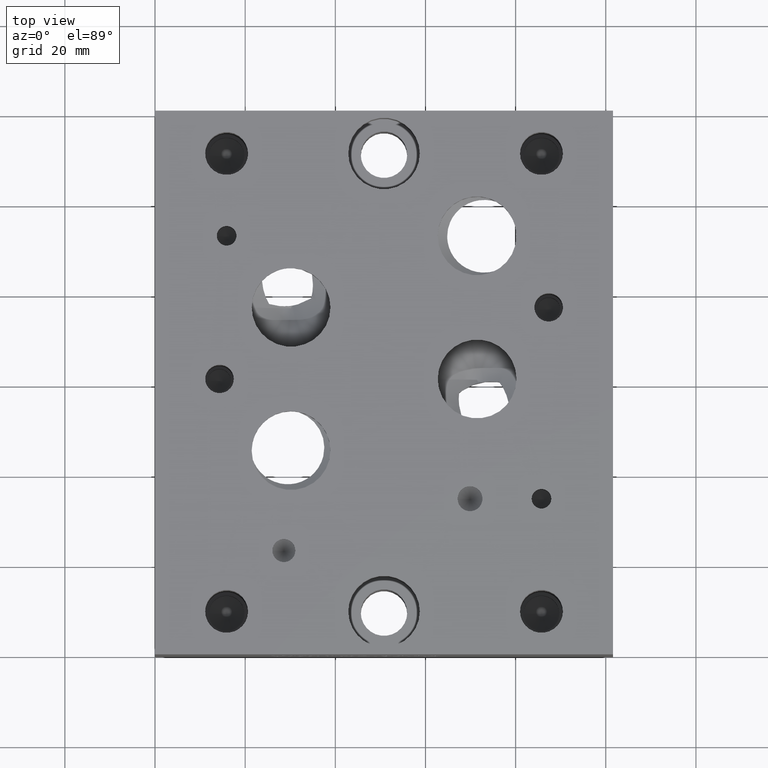
[diagram: clean part render]
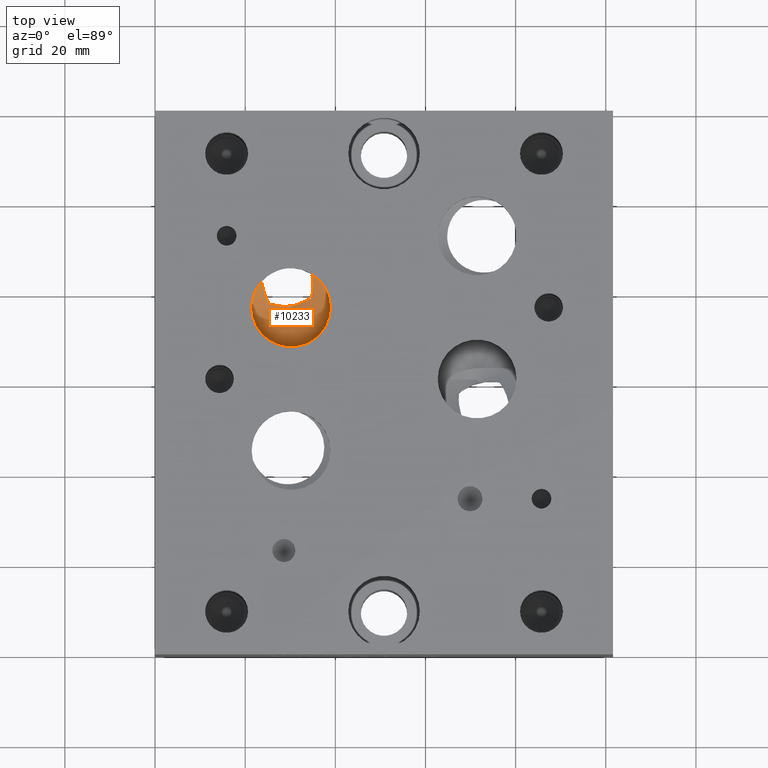
[diagram: same view with one face highlighted and labeled with its STEP entity id]
A machine part, top view. The second image highlights one B-rep face of the part: STEP entity #10233.
In plain terms, the highlighted conical surface has half-angle 60 deg.
Its self-contained STEP definition (entity closure, byte-faithful):
#40=CONICAL_SURFACE('',#10785,4.3688,1.0471975511966);
#261=CIRCLE('',#10637,8.7376);
#262=CIRCLE('',#10638,8.7376);
#645=B_SPLINE_CURVE_WITH_KNOTS('',3,(#16922,#16923,#16924,#16925,#16926,
#16927,#16928,#16929),.UNSPECIFIED.,.F.,.F.,(4,2,2,4),(2.31598992915465,
2.40599397602567,2.67744323291812,2.86056402972283),.UNSPECIFIED.);
#646=B_SPLINE_CURVE_WITH_KNOTS('',3,(#16937,#16938,#16939,#16940,#16941,
#16942,#16943,#16944),.UNSPECIFIED.,.F.,.F.,(4,2,2,4),(0.508249649984418,
0.713365945778952,1.04331705046518,1.05929853243754),.UNSPECIFIED.);
#648=B_SPLINE_CURVE_WITH_KNOTS('',3,(#16963,#16964,#16965,#16966,#16967,
#16968,#16969,#16970,#16971,#16972,#16973,#16974,#16975,#16976,#16977,#16978,
#16979,#16980,#16981,#16982,#16983,#16984),.UNSPECIFIED.,.F.,.F.,(4,2,2,
2,2,2,2,2,2,2,4),(2.47628792936167,2.64264521419208,2.83088254281197,2.92500120712191,
2.97206053927688,3.01911987143185,3.06617920358683,3.1132385357418,3.20735720005174,
3.39559452867163,3.56195181350204),.UNSPECIFIED.);
#1219=FACE_OUTER_BOUND('',#1797,.T.);
#1797=EDGE_LOOP('',(#8817,#8818,#8819,#8820,#8821,#8822,#8823));
#2811=LINE('',#17451,#3791);
#3791=VECTOR('',#12829,4.3688);
#4598=VERTEX_POINT('',#16920);
#4599=VERTEX_POINT('',#16921);
#4602=VERTEX_POINT('',#16934);
#4603=VERTEX_POINT('',#16936);
#4620=VERTEX_POINT('',#17110);
#4716=VERTEX_POINT('',#17450);
#5941=EDGE_CURVE('',#4598,#4599,#645,.T.);
#5945=EDGE_CURVE('',#4603,#4602,#646,.T.);
#5949=EDGE_CURVE('',#4602,#4598,#648,.T.);
#5970=EDGE_CURVE('',#4599,#4620,#261,.T.);
#5971=EDGE_CURVE('',#4620,#4603,#262,.T.);
#6113=EDGE_CURVE('',#4620,#4716,#2811,.T.);
#8817=ORIENTED_EDGE('',*,*,#5941,.T.);
#8818=ORIENTED_EDGE('',*,*,#5970,.T.);
#8819=ORIENTED_EDGE('',*,*,#6113,.T.);
#8820=ORIENTED_EDGE('',*,*,#6113,.F.);
#8821=ORIENTED_EDGE('',*,*,#5971,.T.);
#8822=ORIENTED_EDGE('',*,*,#5945,.T.);
#8823=ORIENTED_EDGE('',*,*,#5949,.T.);
#10233=ADVANCED_FACE('',(#1219),#40,.F.);
#10637=AXIS2_PLACEMENT_3D('',#17112,#12484,#12485);
#10638=AXIS2_PLACEMENT_3D('',#17113,#12486,#12487);
#10785=AXIS2_PLACEMENT_3D('',#17449,#12827,#12828);
#12484=DIRECTION('center_axis',(0.,0.,1.));
#12485=DIRECTION('ref_axis',(1.,0.,0.));
#12486=DIRECTION('center_axis',(0.,0.,1.));
#12487=DIRECTION('ref_axis',(1.,0.,0.));
#12827=DIRECTION('center_axis',(0.,0.,1.));
#12828=DIRECTION('ref_axis',(1.,0.,0.));
#12829=DIRECTION('',(0.866025403784439,1.06057523872491E-16,-0.5));
#16920=CARTESIAN_POINT('',(25.3232038600558,77.8628599581122,30.85722));
#16921=CARTESIAN_POINT('',(23.7456720876604,82.904056537644,33.05534));
#16922=CARTESIAN_POINT('Ctrl Pts',(25.3232038600558,77.8628599581122,30.85722));
#16923=CARTESIAN_POINT('Ctrl Pts',(25.1695255981717,78.111901027468,30.9700673244998));
#16924=CARTESIAN_POINT('Ctrl Pts',(25.0304015035524,78.3638333468694,31.0833063998235));
#16925=CARTESIAN_POINT('Ctrl Pts',(24.529166346533,79.3642324077654,31.5300892711614));
#16926=CARTESIAN_POINT('Ctrl Pts',(24.219798346291,80.2256762108251,31.9079430721494));
#16927=CARTESIAN_POINT('Ctrl Pts',(23.879533782125,81.7077842627017,32.5472449129127));
#16928=CARTESIAN_POINT('Ctrl Pts',(23.7895650376097,82.3154663029492,32.8065818803959));
#16929=CARTESIAN_POINT('Ctrl Pts',(23.7456720876604,82.904056537644,33.05534));
#16934=CARTESIAN_POINT('',(34.6241703009608,79.1122435098755,30.85722));
#16936=CARTESIAN_POINT('',(34.8154344098894,84.3910395361524,33.05534));
#16937=CARTESIAN_POINT('Ctrl Pts',(34.8154344098894,84.3910395361524,33.05534));
#16938=CARTESIAN_POINT('Ctrl Pts',(34.9440563103142,83.7315789931136,32.7721642575007));
#16939=CARTESIAN_POINT('Ctrl Pts',(35.0142914335305,83.0726002475319,32.4924719610176));
#16940=CARTESIAN_POINT('Ctrl Pts',(35.0618896603457,81.4288183050657,31.801968898384));
#16941=CARTESIAN_POINT('Ctrl Pts',(34.9583877408094,80.3202727735052,31.343924372207));
#16942=CARTESIAN_POINT('Ctrl Pts',(34.6536200788129,79.2140671401424,30.8981719686619));
#16943=CARTESIAN_POINT('Ctrl Pts',(34.6391113809815,79.1630855865721,30.8776546494154));
#16944=CARTESIAN_POINT('Ctrl Pts',(34.6241703009608,79.1122435098755,30.85722));
#16963=CARTESIAN_POINT('Ctrl Pts',(34.6241703009608,79.1122435098755,30.85722));
#16964=CARTESIAN_POINT('Ctrl Pts',(34.206265541955,78.8539639889906,30.5752340272588));
#16965=CARTESIAN_POINT('Ctrl Pts',(33.7758504614226,78.625058841869,30.2944392534548));
#16966=CARTESIAN_POINT('Ctrl Pts',(32.8440726964325,78.2012648324693,29.7034482310376));
#16967=CARTESIAN_POINT('Ctrl Pts',(32.2982973224961,77.9980445097158,29.3664264468824));
#16968=CARTESIAN_POINT('Ctrl Pts',(31.4789741894367,77.7626603097435,28.8857291541185));
#16969=CARTESIAN_POINT('Ctrl Pts',(31.2083948215673,77.6958484795097,28.7299876730185));
#16970=CARTESIAN_POINT('Ctrl Pts',(30.8059773570134,77.6113256220087,28.5215201999473));
#16971=CARTESIAN_POINT('Ctrl Pts',(30.6731573715325,77.5858747544624,28.4562599399898));
#16972=CARTESIAN_POINT('Ctrl Pts',(30.4011133036015,77.5387938603454,28.3495801321923));
#16973=CARTESIAN_POINT('Ctrl Pts',(30.2623183774292,77.5171092605662,28.3070933856956));
#16974=CARTESIAN_POINT('Ctrl Pts',(29.9513822372099,77.4753417193427,28.3070933856956));
#16975=CARTESIAN_POINT('Ctrl Pts',(29.8117849370127,77.4596303484156,28.3495801321923));
#16976=CARTESIAN_POINT('Ctrl Pts',(29.5369600333486,77.4332512314227,28.4562599399898));
#16977=CARTESIAN_POINT('Ctrl Pts',(29.4021319715848,77.4227493762049,28.5215201999473));
#16978=CARTESIAN_POINT('Ctrl Pts',(28.9916744770772,77.398080075026,28.7299876730185));
#16979=CARTESIAN_POINT('Ctrl Pts',(28.7130554572019,77.391118987503,28.8857291541185));
#16980=CARTESIAN_POINT('Ctrl Pts',(27.8606594581444,77.4019439010716,29.3664264468824));
#16981=CARTESIAN_POINT('Ctrl Pts',(27.2806022245444,77.4539329780366,29.7034482310376));
#16982=CARTESIAN_POINT('Ctrl Pts',(26.270017549837,77.6168126298649,30.2944392534548));
#16983=CARTESIAN_POINT('Ctrl Pts',(25.7944531554354,77.7240190415476,30.5752340272588));
#16984=CARTESIAN_POINT('Ctrl Pts',(25.3232038600558,77.8628599581122,30.85722));
#17110=CARTESIAN_POINT('',(21.4376,76.9874,33.05534));
#17112=CARTESIAN_POINT('Origin',(30.1752,76.9874,33.05534));
#17113=CARTESIAN_POINT('Origin',(30.1752,76.9874,33.05534));
#17449=CARTESIAN_POINT('Origin',(30.1752,76.9874,30.5330121439644));
#17450=CARTESIAN_POINT('',(30.1752,76.9874,28.0106842879287));
#17451=CARTESIAN_POINT('',(25.8064,76.9874,30.5330121439644));